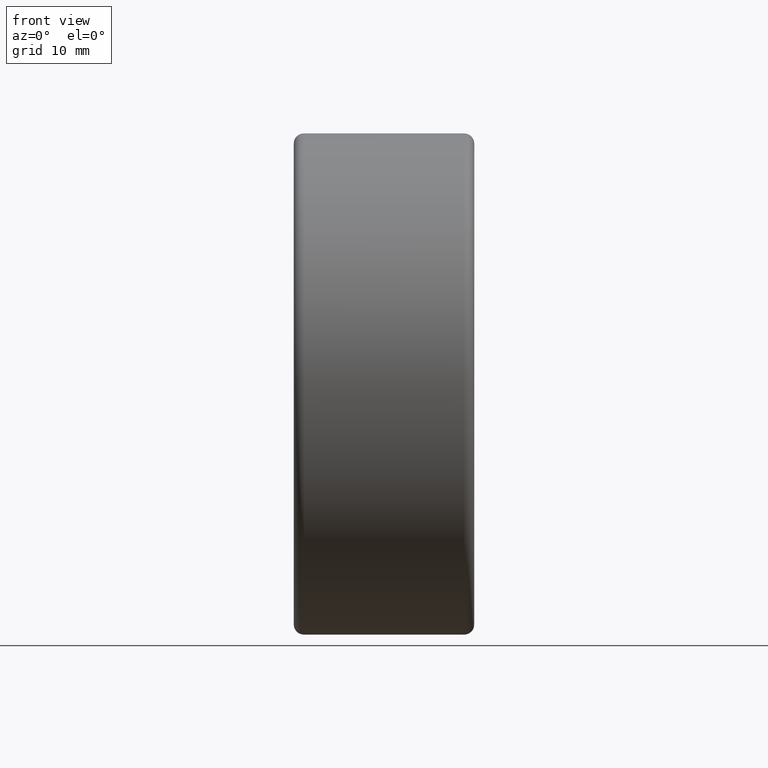
[diagram: clean part render]
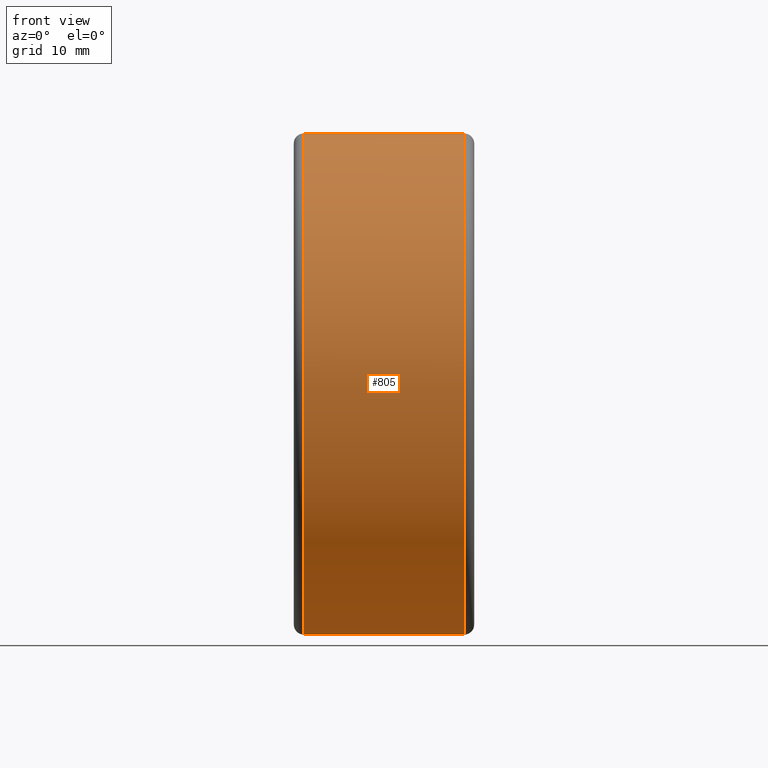
[diagram: same view with one face highlighted and labeled with its STEP entity id]
A machine part, front view. The second image highlights one B-rep face of the part: STEP entity #805.
In plain terms, the highlighted cylindrical surface (partial cylindrical patch) has radius 25 mm, axis along (-1, -0, -0).
Its self-contained STEP definition (entity closure, byte-faithful):
#38 = VERTEX_POINT ( 'NONE', #833 ) ;
#47 = EDGE_CURVE ( 'NONE', #962, #38, #802, .T. ) ;
#132 = VERTEX_POINT ( 'NONE', #870 ) ;
#198 = VERTEX_POINT ( 'NONE', #1223 ) ;
#330 = VECTOR ( 'NONE', #1221, 1000.000000000000000 ) ;
#343 = DIRECTION ( 'NONE',  ( 1.000000000000000000, 0.0000000000000000000, 0.0000000000000000000 ) ) ;
#348 = CARTESIAN_POINT ( 'NONE',  ( -8.000000000000000000, 0.0000000000000000000, 0.0000000000000000000 ) ) ;
#418 = DIRECTION ( 'NONE',  ( -1.000000000000000000, -0.0000000000000000000, -0.0000000000000000000 ) ) ;
#572 = DIRECTION ( 'NONE',  ( 0.0000000000000000000, 0.0000000000000000000, 1.000000000000000000 ) ) ;
#577 = AXIS2_PLACEMENT_3D ( 'NONE', #670, #1106, #572 ) ;
#586 = ORIENTED_EDGE ( 'NONE', *, *, #1277, .F. ) ;
#621 = AXIS2_PLACEMENT_3D ( 'NONE', #348, #343, #1334 ) ;
#624 = LINE ( 'NONE', #680, #978 ) ;
#626 = ORIENTED_EDGE ( 'NONE', *, *, #798, .T. ) ;
#670 = CARTESIAN_POINT ( 'NONE',  ( -5.000000000000000000, 0.0000000000000000000, 0.0000000000000000000 ) ) ;
#680 = CARTESIAN_POINT ( 'NONE',  ( -5.000000000000000000, 3.061616997868383043E-15, -25.00000000000000000 ) ) ;
#687 = ORIENTED_EDGE ( 'NONE', *, *, #47, .T. ) ;
#696 = FACE_OUTER_BOUND ( 'NONE', #1344, .T. ) ;
#728 = CIRCLE ( 'NONE', #621, 25.00000000000000000 ) ;
#749 = CARTESIAN_POINT ( 'NONE',  ( 8.000000000000000000, 0.0000000000000000000, 0.0000000000000000000 ) ) ;
#798 = EDGE_CURVE ( 'NONE', #198, #132, #728, .T. ) ;
#802 = CIRCLE ( 'NONE', #1251, 25.00000000000000000 ) ;
#805 = ADVANCED_FACE ( 'NONE', ( #696 ), #1192, .T. ) ;
#809 = EDGE_CURVE ( 'NONE', #38, #198, #1240, .T. ) ;
#833 = CARTESIAN_POINT ( 'NONE',  ( 8.000000000000000000, 0.0000000000000000000, 25.00000000000000000 ) ) ;
#840 = ORIENTED_EDGE ( 'NONE', *, *, #809, .T. ) ;
#870 = CARTESIAN_POINT ( 'NONE',  ( -8.000000000000000000, 0.0000000000000000000, -25.00000000000000000 ) ) ;
#962 = VERTEX_POINT ( 'NONE', #1142 ) ;
#978 = VECTOR ( 'NONE', #1120, 1000.000000000000000 ) ;
#1106 = DIRECTION ( 'NONE',  ( -1.000000000000000000, -0.0000000000000000000, -0.0000000000000000000 ) ) ;
#1120 = DIRECTION ( 'NONE',  ( -1.000000000000000000, -0.0000000000000000000, -0.0000000000000000000 ) ) ;
#1142 = CARTESIAN_POINT ( 'NONE',  ( 8.000000000000000000, 3.061616997868383043E-15, -25.00000000000000000 ) ) ;
#1192 = CYLINDRICAL_SURFACE ( 'NONE', #577, 25.00000000000000000 ) ;
#1217 = CARTESIAN_POINT ( 'NONE',  ( -5.000000000000000000, 0.0000000000000000000, 25.00000000000000000 ) ) ;
#1221 = DIRECTION ( 'NONE',  ( -1.000000000000000000, -0.0000000000000000000, -0.0000000000000000000 ) ) ;
#1223 = CARTESIAN_POINT ( 'NONE',  ( -8.000000000000000000, 3.061616997868383043E-15, 25.00000000000000000 ) ) ;
#1240 = LINE ( 'NONE', #1217, #330 ) ;
#1251 = AXIS2_PLACEMENT_3D ( 'NONE', #749, #418, #1314 ) ;
#1277 = EDGE_CURVE ( 'NONE', #962, #132, #624, .T. ) ;
#1314 = DIRECTION ( 'NONE',  ( 0.0000000000000000000, 0.0000000000000000000, 1.000000000000000000 ) ) ;
#1334 = DIRECTION ( 'NONE',  ( 0.0000000000000000000, 0.0000000000000000000, -1.000000000000000000 ) ) ;
#1344 = EDGE_LOOP ( 'NONE', ( #586, #687, #840, #626 ) ) ;